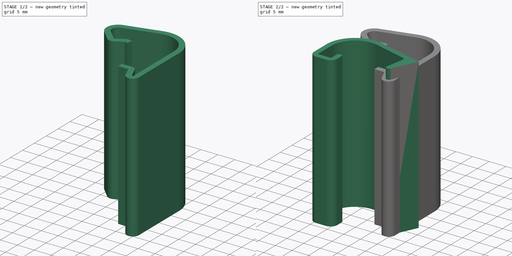
[diagram: build sequence overview — one tinted view per stage of 2, left to right]
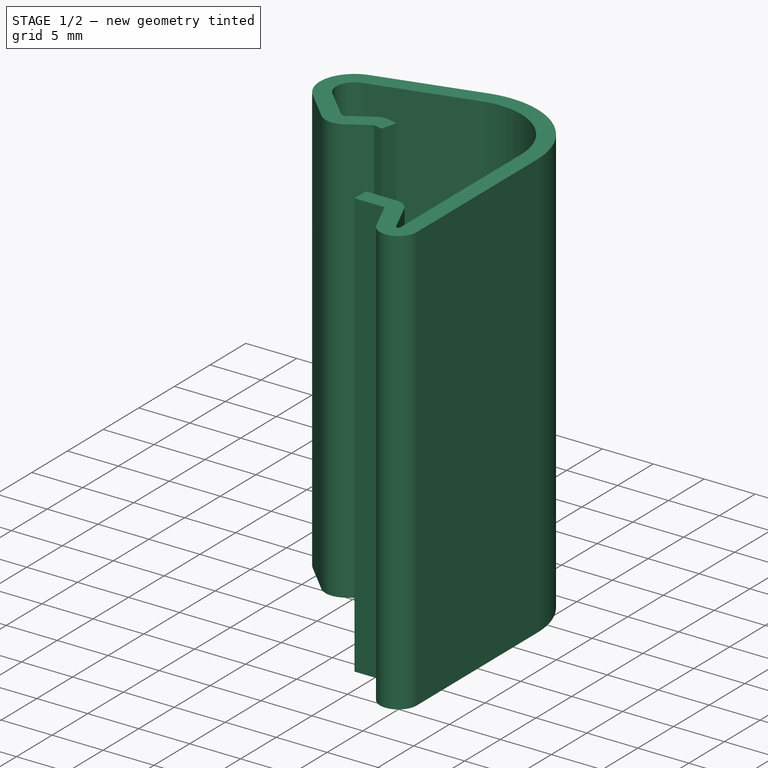
[diagram: stage 1 of 2 — iso view after this stage's code; geometry added in this stage tinted green]
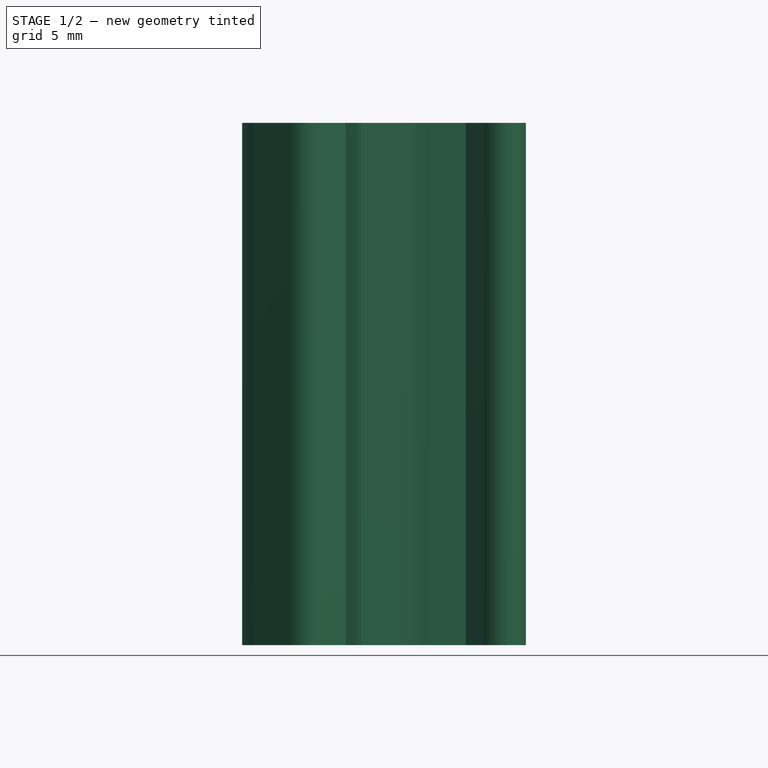
[diagram: stage 1 of 2 — front view after this stage's code; geometry added in this stage tinted green]
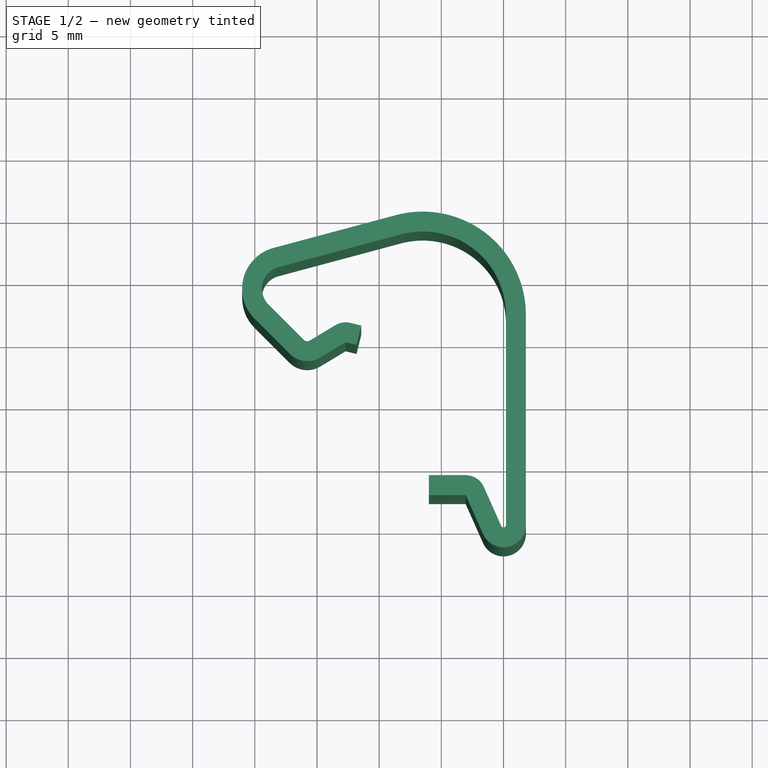
[diagram: stage 1 of 2 — top view after this stage's code; geometry added in this stage tinted green]
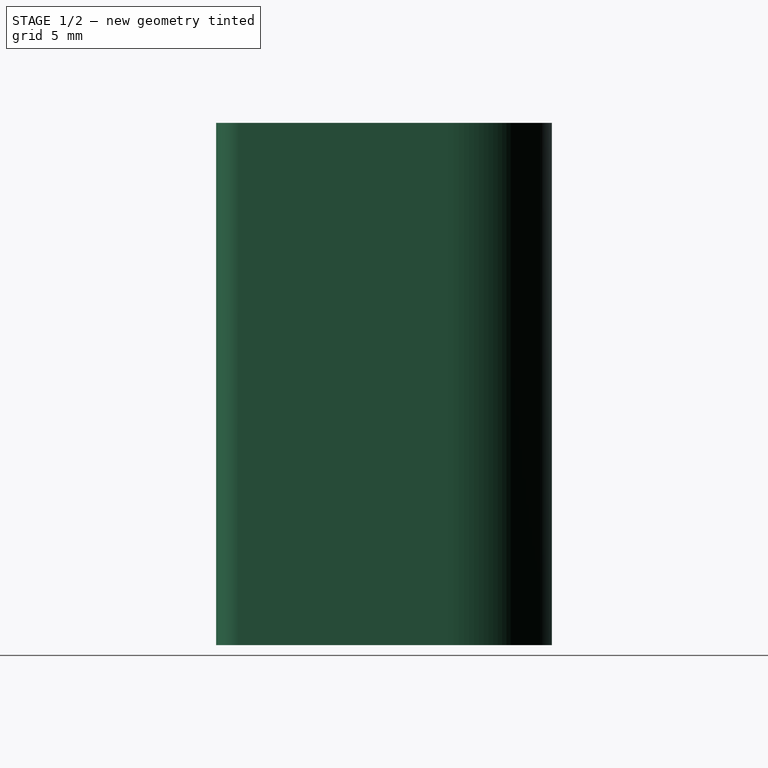
[diagram: stage 1 of 2 — right view after this stage's code; geometry added in this stage tinted green]
FCSTD DOCUMENT  (FreeCAD 1.0R39109 (Git))
Label: SamlaLock
License: All rights reserved
LicenseURL: https://en.wikipedia.org/wiki/All_rights_reserved
objects: Sketcher::SketchObject×2, PartDesign::Pad×2, PartDesign::Body×2
note: 12 computed .brp shape members not serialized (recipe doc carries the construction recipe); baked Part::Feature solids carry a one-line shape summary decoded from their .brp

FEATURE [PartDesign::Body] Body  label="TooSmall"
  AllowCompound = false
  Group = -> [Sketch,Pad]
  Origin = -> Origin
  Tip = -> Pad
FEATURE [Sketcher::SketchObject] Sketch001
  ArcFitTolerance = 1e-06
  AttachmentSupport = -> [XY_Plane001]
  FullyConstrained = true
  MakeInternals = false
  MapMode = 5
  sketch-geometry (36):
    g0: ArcOfCircle CenterX=0 CenterY=0 CenterZ=0 NormalX=0 NormalY=0 NormalZ=1 AngleXU=0 Radius=0.2 StartAngle=3.56047 EndAngle=6.28319
    g1: LineSegment StartX=0.2 StartY=2.12e-14 StartZ=0 EndX=0.2 EndY=16.9 EndZ=0
    g2: LineSegment StartX=1.8 StartY=6e-16 StartZ=0 EndX=1.8 EndY=16.9 EndZ=0
    g3: LineSegment StartX=-0.182709 StartY=-0.0813473 StartZ=0 EndX=-1.57722 EndY=3.05078 EndZ=0
    g4: LineSegment [constr] StartX=0.2 StartY=2.12e-14 StartZ=0 EndX=1.8 EndY=6e-16 EndZ=0
    g5: ArcOfCircle CenterX=0 CenterY=0 CenterZ=0 NormalX=0 NormalY=0 NormalZ=1 AngleXU=0 Radius=1.8 StartAngle=3.56047 EndAngle=6.28319
    g6: LineSegment StartX=-1.64438 StartY=-0.732126 StartZ=0 EndX=-3.03889 EndY=2.4 EndZ=0
    g7: LineSegment StartX=-3.03889 StartY=2.4 StartZ=0 EndX=-6 EndY=2.4 EndZ=0
    g8: LineSegment StartX=-6 StartY=4 StartZ=0 EndX=-3.03889 EndY=4 EndZ=0
    g9: LineSegment StartX=-6 StartY=2.4 StartZ=0 EndX=-6 EndY=4 EndZ=0
    g10: ArcOfCircle CenterX=-3.03889 CenterY=2.4 CenterZ=0 NormalX=0 NormalY=0 NormalZ=1 AngleXU=0 Radius=1.6 StartAngle=0.418879 EndAngle=1.5708
    g11: LineSegment [constr] StartX=0.2 StartY=16.9 StartZ=0 EndX=1.8 EndY=16.9 EndZ=0
    g12: ArcOfCircle CenterX=-6.5 CenterY=16.9 CenterZ=0 NormalX=0 NormalY=0 NormalZ=1 AngleXU=0 Radius=8.3 StartAngle=0 EndAngle=1.8326
    g13: LineSegment StartX=-8.6482 StartY=24.9172 StartZ=0 EndX=-18.5006 EndY=22.2772 EndZ=0
    g14: ArcOfCircle CenterX=-6.5 CenterY=16.9 CenterZ=0 NormalX=0 NormalY=0 NormalZ=1 AngleXU=0 Radius=6.7 StartAngle=0 EndAngle=1.8326
    g15: LineSegment StartX=-18.0865 StartY=20.7317 StartZ=0 EndX=-8.23409 EndY=23.3717 EndZ=0
    g16: LineSegment [constr] StartX=-18.5006 StartY=22.2772 StartZ=0 EndX=-18.0865 EndY=20.7317 EndZ=0
    g17: GeomPoint [constr] X=-6 Y=3.2 Z=0
    g18: LineSegment [constr] StartX=-8.6482 StartY=24.9172 StartZ=0 EndX=-8.23409 EndY=23.3717 EndZ=0
    g19: ArcOfCircle CenterX=-17.6207 CenterY=18.9931 CenterZ=0 NormalX=0 NormalY=0 NormalZ=1 AngleXU=0 Radius=1.8 StartAngle=1.8326 EndAngle=3.92699
    g20: LineSegment [constr] StartX=-18.8934 StartY=17.7203 StartZ=0 EndX=-20.0248 EndY=16.5889 EndZ=0
    g21: ArcOfCircle CenterX=-17.6207 CenterY=18.9931 CenterZ=0 NormalX=0 NormalY=0 NormalZ=1 AngleXU=0 Radius=3.4 StartAngle=1.8326 EndAngle=3.92699
    g22: LineSegment StartX=-18.8934 StartY=17.7203 StartZ=0 EndX=-16.065 EndY=14.8919 EndZ=0
    g23: LineSegment StartX=-20.0248 StartY=16.5889 StartZ=0 EndX=-17.1964 EndY=13.7605 EndZ=0
    g24: LineSegment [constr] StartX=-16.065 StartY=14.8919 StartZ=0 EndX=-17.1964 EndY=13.7605 EndZ=0
    g25: ArcOfCircle CenterX=-15.7822 CenterY=15.1747 CenterZ=0 NormalX=0 NormalY=0 NormalZ=1 AngleXU=0 Radius=0.4 StartAngle=3.92699 EndAngle=5.25344
    g26: LineSegment [constr] StartX=-15.5762 StartY=14.8318 StartZ=0 EndX=-14.7521 EndY=13.4604 EndZ=0
    g27: ArcOfCircle CenterX=-15.7822 CenterY=15.1747 CenterZ=0 NormalX=0 NormalY=0 NormalZ=1 AngleXU=0 Radius=2 StartAngle=3.92699 EndAngle=5.25344
    g28: LineSegment StartX=-15.5762 StartY=14.8318 StartZ=0 EndX=-13.519 EndY=16.0679 EndZ=0
    g29: LineSegment StartX=-14.7521 StartY=13.4604 StartZ=0 EndX=-12.6949 EndY=14.6965 EndZ=0
    g30: LineSegment [constr] StartX=-13.519 StartY=16.0679 StartZ=0 EndX=-12.6949 EndY=14.6965 EndZ=0
    g31: ArcOfCircle CenterX=-12.6949 CenterY=14.6965 CenterZ=0 NormalX=0 NormalY=0 NormalZ=1 AngleXU=0 Radius=1.6 StartAngle=1.32645 EndAngle=2.11185
    g32: LineSegment [constr] StartX=-12.6949 StartY=14.6965 StartZ=0 EndX=-12.3078 EndY=16.2489 EndZ=0
    g33: LineSegment StartX=-12.6949 StartY=14.6965 StartZ=0 EndX=-11.8216 EndY=14.4787 EndZ=0
    g34: LineSegment StartX=-12.3078 StartY=16.2489 StartZ=0 EndX=-11.4346 EndY=16.0312 EndZ=0
    g35: LineSegment StartX=-11.4346 StartY=16.0312 StartZ=0 EndX=-11.8216 EndY=14.4787 EndZ=0
  constraints (95):
    c: Radius(g0) = 0.2
    c: Vertical(g1)
    c: Vertical(g2)
    c: Tangent(g0,g1) = -1.5708
    c: Tangent(g3,g0) = 1.5708
    c: Angle(g1,g3) = 0.418879
    c: Coincident(g4,g0)
    c: Coincident(g4,g2)
    c: DistanceX(g4,g4) = 1.6
    c: Coincident(g5,g0)
    c: Tangent(g2,g5) = -1.5708
    c: Parallel(g3,g6)
    c: Tangent(g5,g6) = 1.5708
    c: Coincident(g7,g6)
    c: Horizontal(g7)
    c: Horizontal(g8)
    c: Coincident(g9,g7)
    c: Coincident(g9,g8)
    c: Vertical(g9)
    c: Tangent(g8,g10) = 1.5708
    c: Tangent(g3,g10) = -1.5708
    c: Coincident(g11,g1)
    c: Coincident(g11,g2)
    c: DistanceY(g2,g2) = 16.9
    c: DistanceX(g8,g0) = 6
    c: Angle(g15,g1) = 1.309
    c: Radius(g14) = 6.7
    c: Coincident(g16,g13)
    c: Coincident(g16,g15)
    c: Perpendicular(g13,g16)
    c: Distance(g13) = 10.2
    c: Coincident(g10,g6)
    c: Symmetric(g8,g7,g17)
    c: DistanceY(g0,g17) = 3.2
    c: DistanceX(g7,g7) = 2.96111
    c: Coincident(g18,g12)
    c: Coincident(g18,g14)
    c: PointOnObject(g12,g18)
    c: Perpendicular(g13,g18)
    c: PointOnObject(g12,g11)
    c: Coincident(g2,g12)
    c: Coincident(g1,g14)
    c: Horizontal(g11)
    c: Coincident(g14,g15)
    c: Coincident(g12,g13)
    c: Coincident(g12,g14)
    c: Radius(g19) = 1.8
    c: PointOnObject(g19,g16)
    c: Coincident(g19,g15)
    c: Equal(g18,g16)
    c: Coincident(g20,g19)
    c: PointOnObject(g19,g20)
    c: Coincident(g21,g19)
    c: Coincident(g21,g13)
    c: Coincident(g21,g20)
    c: Coincident(g24,g22)
    c: Coincident(g24,g23)
    c: Coincident(g19,g22)
    c: Coincident(g20,g23)
    c: Perpendicular(g22,g20)
    c: Angle(g22,g15) = 1.0472
    c: Perpendicular(g24,g22)
    c: Equal(g20,g24)
    c: Distance(g23) = 4
    c: Coincident(g25,g22)
    c: PointOnObject(g25,g24)
    c: Radius(g25) = 0.4
    c: Coincident(g26,g25)
    c: PointOnObject(g25,g26)
    c: Coincident(g27,g25)
    c: Coincident(g27,g23)
    c: Coincident(g27,g26)
    c: Coincident(g28,g25)
    c: Coincident(g29,g26)
    c: Coincident(g30,g28)
    c: Coincident(g30,g29)
    c: Perpendicular(g29,g30)
    c: Perpendicular(g29,g26)
    c: Equal(g26,g30)
    c: Angle(g28,g22) = 1.81514
    c: Distance(g29) = 2.4
    c: Coincident(g31,g29)
    c: Coincident(g31,g28)
    c: Coincident(g32,g29)
    c: Coincident(g32,g31)
    c: Coincident(g33,g29)
    c: Coincident(g34,g31)
    c: Coincident(g35,g34)
    c: Coincident(g35,g33)
    c: Perpendicular(g33,g32)
    c: Perpendicular(g35,g33)
    c: Equal(g35,g32)
    c: Angle(g29,g33) = 2.35619
    c: Distance(g34) = 0.9
    c: Coincident(g0,g-1)  '__ANCHOR__'
FEATURE [PartDesign::Pad] Pad001
  Direction = (0,0,1)
  Length = 42
  Length2 = 10
  Profile = -> Sketch001
  ReferenceAxis = -> Sketch001 [N_Axis]
  Refine = true
  Suppressed = false
  Type = 0
FEATURE [PartDesign::Body] Body001  label="Body"
  AllowCompound = false
  Group = -> [Sketch001,Pad001]
  Origin = -> Origin001
  Tip = -> Pad001
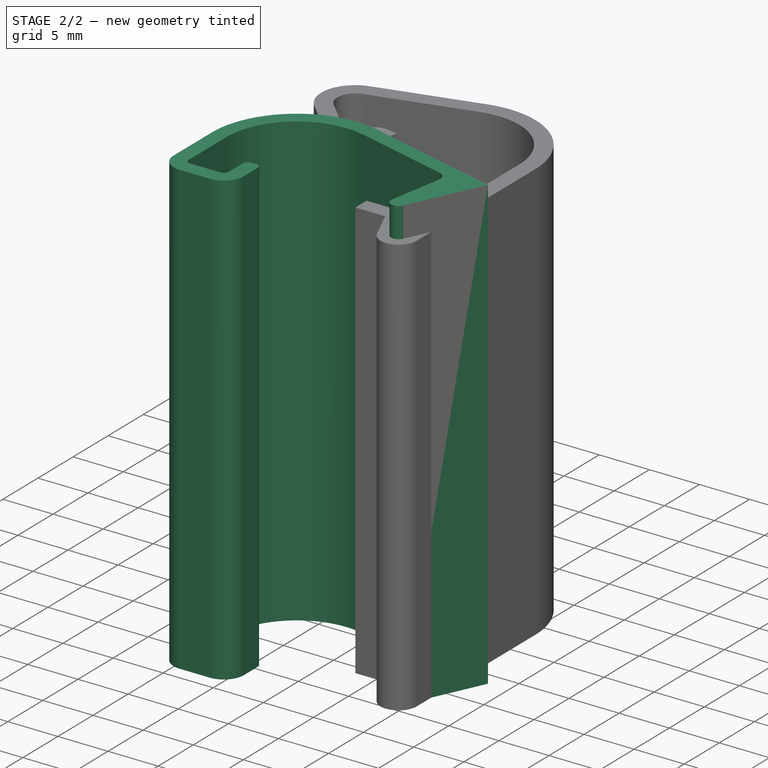
[diagram: stage 2 of 2 — iso view after this stage's code; geometry added in this stage tinted green]
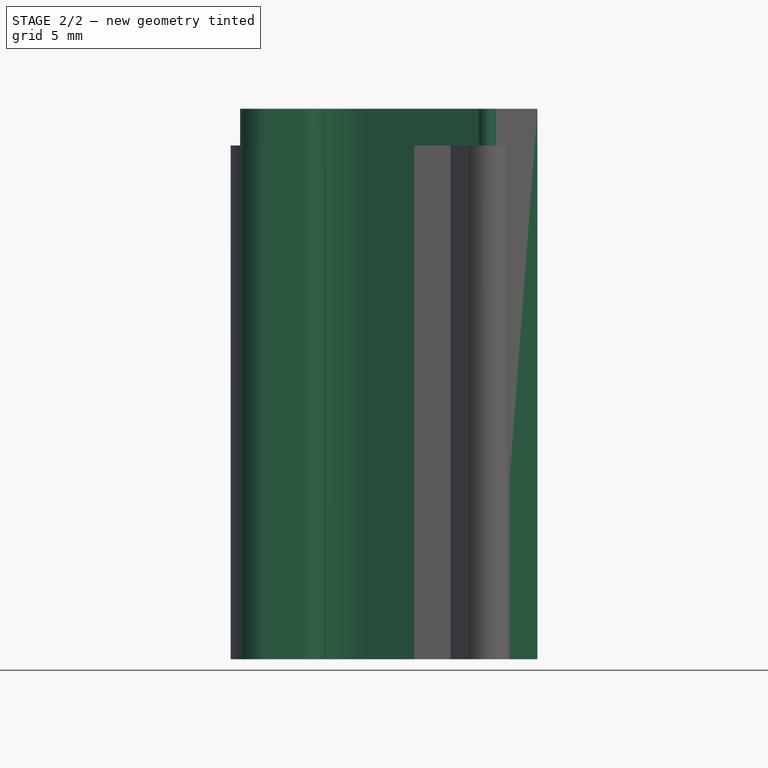
[diagram: stage 2 of 2 — front view after this stage's code; geometry added in this stage tinted green]
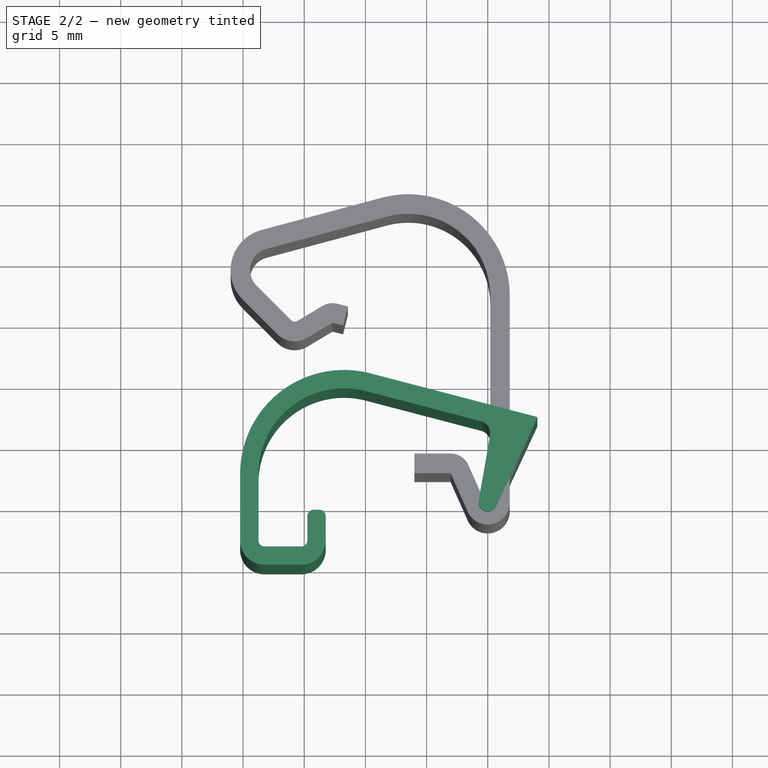
[diagram: stage 2 of 2 — top view after this stage's code; geometry added in this stage tinted green]
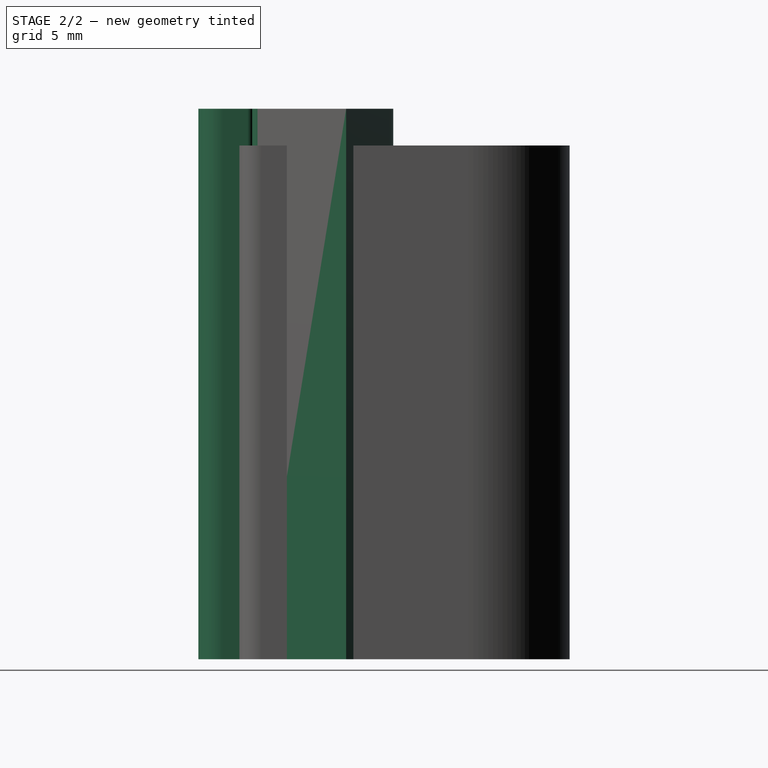
[diagram: stage 2 of 2 — right view after this stage's code; geometry added in this stage tinted green]
FEATURE [Sketcher::SketchObject] Sketch
  ArcFitTolerance = 1e-06
  AttachmentSupport = -> [XY_Plane]
  FullyConstrained = true
  MakeInternals = false
  MapMode = 5
  sketch-geometry (28):
    g0: ArcOfCircle CenterX=-11.7439 CenterY=2.28516 CenterZ=0 NormalX=0 NormalY=0 NormalZ=1 AngleXU=0 Radius=7 StartAngle=1.31476 EndAngle=3.14159
    g1: LineSegment StartX=-9.97116 StartY=9.05697 StartZ=0 EndX=-0.539004 EndY=6.58777 EndZ=0
    g2: LineSegment StartX=-18.7439 StartY=2.28516 StartZ=0 EndX=-18.7439 EndY=-3.14484 EndZ=0
    g3: ArcOfCircle CenterX=-0.792256 CenterY=5.62037 CenterZ=0 NormalX=0 NormalY=0 NormalZ=1 AngleXU=0 Radius=1 StartAngle=6.1097 EndAngle=7.59794
    g4: LineSegment StartX=0.192734 StartY=5.44775 StartZ=0 EndX=-0.739266 EndY=0.129555 EndZ=0
    g5: ArcOfCircle CenterX=-11.7439 CenterY=2.28516 CenterZ=0 NormalX=0 NormalY=0 NormalZ=1 AngleXU=0 Radius=8.5 StartAngle=1.31476 EndAngle=3.14159
    g6: LineSegment [constr] StartX=-18.7439 StartY=2.28516 StartZ=0 EndX=-20.2439 EndY=2.28516 EndZ=0
    g7: LineSegment [constr] StartX=-9.97116 StartY=9.05697 StartZ=0 EndX=-9.59128 EndY=10.5081 EndZ=0
    g8: ArcOfCircle CenterX=-18.2439 CenterY=-3.14484 CenterZ=0 NormalX=0 NormalY=0 NormalZ=1 AngleXU=0 Radius=0.5 StartAngle=3.14159 EndAngle=4.71239
    g9: LineSegment StartX=-18.2439 StartY=-3.64484 StartZ=0 EndX=-15.2439 EndY=-3.64484 EndZ=0
    g10: ArcOfCircle CenterX=-15.2439 CenterY=-3.14484 CenterZ=0 NormalX=0 NormalY=0 NormalZ=1 AngleXU=0 Radius=0.5 StartAngle=4.71239 EndAngle=6.28319
    g11: LineSegment StartX=-14.7439 StartY=-3.14484 StartZ=0 EndX=-14.7439 EndY=-1.14484 EndZ=0
    g12: LineSegment [constr] StartX=-18.2439 StartY=-3.64484 StartZ=0 EndX=-18.2439 EndY=-5.14484 EndZ=0
    g13: LineSegment [constr] StartX=-18.7439 StartY=-3.14484 StartZ=0 EndX=-20.2439 EndY=-3.14484 EndZ=0
    g14: LineSegment [constr] StartX=-15.2439 StartY=-3.64484 StartZ=0 EndX=-15.2439 EndY=-5.14484 EndZ=0
    g15: LineSegment [constr] StartX=-14.7439 StartY=-3.14484 StartZ=0 EndX=-13.2439 EndY=-3.14484 EndZ=0
    g16: LineSegment [constr] StartX=-14.7439 StartY=-1.14484 StartZ=0 EndX=-13.2439 EndY=-1.14484 EndZ=0
    g17: ArcOfCircle CenterX=-18.2439 CenterY=-3.14484 CenterZ=0 NormalX=0 NormalY=0 NormalZ=1 AngleXU=0 Radius=2 StartAngle=3.14159 EndAngle=4.71239
    g18: ArcOfCircle CenterX=-15.2439 CenterY=-3.14484 CenterZ=0 NormalX=0 NormalY=0 NormalZ=1 AngleXU=0 Radius=2 StartAngle=4.71239 EndAngle=6.28319
    g19: ArcOfCircle CenterX=-14.2439 CenterY=-1.14484 CenterZ=0 NormalX=0 NormalY=0 NormalZ=1 AngleXU=0 Radius=0.5 StartAngle=1.5708 EndAngle=3.14159
    g20: ArcOfCircle CenterX=-13.7439 CenterY=-1.14484 CenterZ=0 NormalX=0 NormalY=0 NormalZ=1 AngleXU=0 Radius=0.5 StartAngle=6e-16 EndAngle=1.5708
    g21: LineSegment StartX=-14.2439 StartY=-0.644835 StartZ=0 EndX=-13.7439 EndY=-0.644835 EndZ=0
    g22: LineSegment StartX=-13.2439 StartY=-1.14484 StartZ=0 EndX=-13.2439 EndY=-3.14484 EndZ=0
    g23: LineSegment StartX=-18.2439 StartY=-5.14484 StartZ=0 EndX=-15.2439 EndY=-5.14484 EndZ=0
    g24: LineSegment StartX=-9.59128 StartY=10.5081 StartZ=0 EndX=4.05874 EndY=6.93469 EndZ=0
    g25: LineSegment StartX=4.05874 StartY=6.93469 StartZ=0 EndX=0.680324 EndY=-0.316951 EndZ=0
    g26: ArcOfCircle CenterX=0 CenterY=0 CenterZ=0 NormalX=0 NormalY=0 NormalZ=1 AngleXU=0 Radius=0.750533 StartAngle=2.96811 EndAngle=5.8472
    g27: LineSegment StartX=-20.2439 StartY=2.28516 StartZ=0 EndX=-20.2439 EndY=-3.14484 EndZ=0
  constraints (70):
    c: Vertical(g2)
    c: Angle(g2,g1) = 1.31476
    c: Tangent(g0,g2) = -1.5708
    c: Tangent(g0,g1) = 1.5708
    c: Radius(g0) = 7
    c: Distance(g1) = 9.75
    c: Tangent(g1,g3) = 1.5708
    c: Tangent(g3,g4) = 1.5708
    c: Angle(g1,g4) = 1.65335
    c: Radius(g3) = 1
    c: Coincident(g5,g0)
    c: Coincident(g6,g0)
    c: Coincident(g6,g5)
    c: Horizontal(g6)
    c: Coincident(g7,g0)
    c: Coincident(g7,g5)
    c: PointOnObject(g0,g7)
    c: DistanceX(g6,g6) = 1.5
    c: Horizontal(g9)
    c: Tangent(g2,g8) = -1.5708
    c: Tangent(g8,g9) = -1.5708
    c: Radius(g8) = 0.5
    c: DistanceY(g2,g2) = 5.43
    c: Vertical(g11)
    c: Tangent(g10,g11) = -1.5708
    c: Tangent(g9,g10) = -1.5708
    c: Equal(g10,g8)
    c: DistanceX(g2,g10) = 4
    c: Coincident(g12,g8)
    c: Vertical(g12)
    c: Coincident(g13,g2)
    c: Horizontal(g13)
    c: Coincident(g14,g9)
    c: Coincident(g15,g10)
    c: Horizontal(g15)
    c: Coincident(g16,g11)
    c: Horizontal(g16)
    c: Equal(g12,g14)
    c: Vertical(g14)
    c: Equal(g15,g16)
    c: Coincident(g17,g8)
    c: Coincident(g17,g13)
    c: Coincident(g17,g12)
    c: Coincident(g18,g10)
    c: Coincident(g18,g14)
    c: Coincident(g18,g15)
    c: PointOnObject(g19,g16)
    c: Coincident(g19,g11)
    c: PointOnObject(g20,g16)
    c: Coincident(g20,g16)
    c: Equal(g10,g19)
    c: Equal(g19,g20)
    c: Tangent(g19,g21) = 1.5708
    c: Tangent(g20,g21) = 1.5708
    c: DistanceY(g9,g20) = 3
    c: Coincident(g22,g16)
    c: Coincident(g22,g15)
    c: Coincident(g23,g14)
    c: Coincident(g23,g12)
    c: Coincident(g24,g5)
    c: Parallel(g1,g24)
    c: Distance(g24) = 14.11
    c: Coincident(g25,g24)
    c: Tangent(g26,g4) = -1.5708
    c: Tangent(g25,g26) = 1.5708
    c: Angle(g24,g25) = 1.39085
    c: Distance(g25) = 8
    c: Tangent(g27,g5) = -1.5708
    c: Coincident(g27,g13)
    c: Coincident(g26,g-1)  '__ANCHOR__'
FEATURE [PartDesign::Pad] Pad
  Direction = (0,0,1)
  Length = 45
  Length2 = 10
  Profile = -> Sketch
  ReferenceAxis = -> Sketch [N_Axis]
  Refine = true
  Suppressed = false
  Type = 0
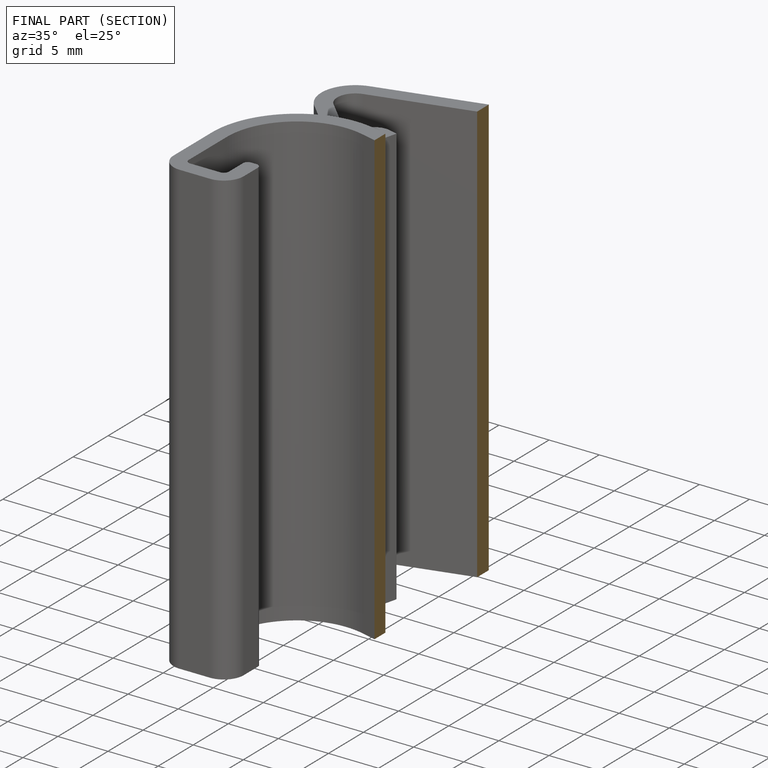
[diagram: finished part — half-section view (interior)]
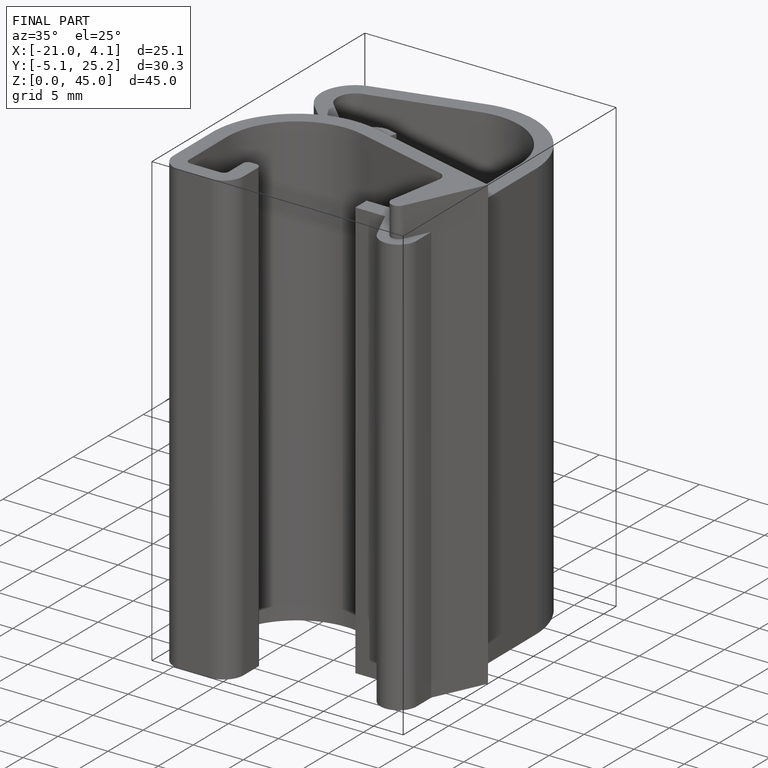
[diagram: finished part — iso view with bounding-box wireframe]
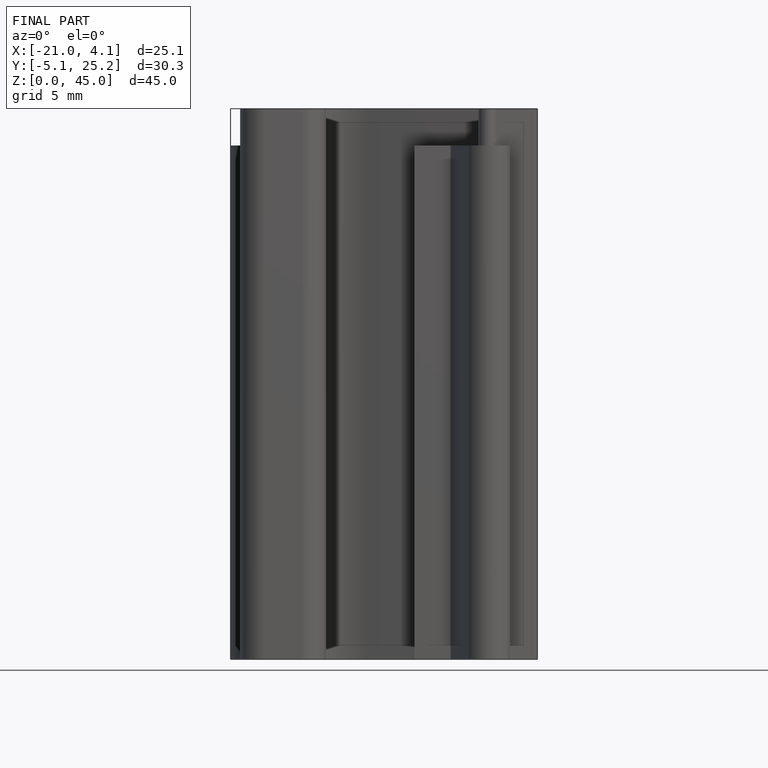
[diagram: finished part — front view with bounding-box wireframe]
